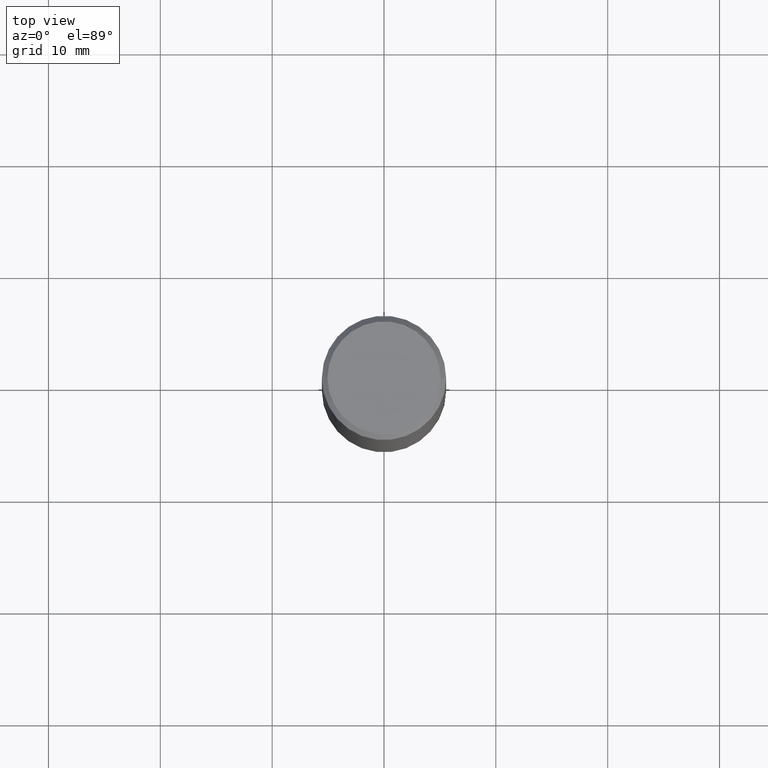
[diagram: clean part render]
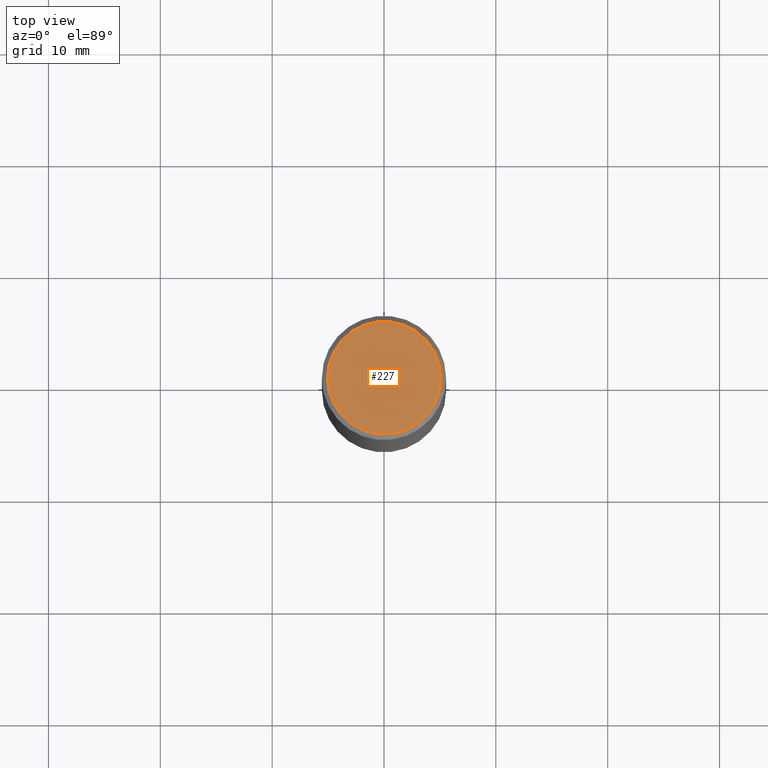
[diagram: same view with one face highlighted and labeled with its STEP entity id]
A machine part, top view. The second image highlights one B-rep face of the part: STEP entity #227.
In plain terms, the highlighted planar face has unit normal (0, -0, -1).
Its self-contained STEP definition (entity closure, byte-faithful):
#44 = VERTEX_POINT ( 'NONE', #219 ) ;
#56 = EDGE_CURVE ( 'NONE', #131, #44, #268, .T. ) ;
#63 = FACE_OUTER_BOUND ( 'NONE', #331, .T. ) ;
#76 = DIRECTION ( 'NONE',  ( 1.000000000000000000, -6.982962677686266711E-15, 4.876176775795935232E-29 ) ) ;
#81 = ORIENTED_EDGE ( 'NONE', *, *, #116, .T. ) ;
#85 = CARTESIAN_POINT ( 'NONE',  ( 0.000000000000000000, 0.000000000000000000, 0.000000000000000000 ) ) ;
#108 = DIRECTION ( 'NONE',  ( -2.445468806185136597E-29, 3.491481338843145583E-15, 1.000000000000000000 ) ) ;
#110 = CARTESIAN_POINT ( 'NONE',  ( 0.000000000000000000, 0.000000000000000000, 0.000000000000000000 ) ) ;
#113 = AXIS2_PLACEMENT_3D ( 'NONE', #110, #334, #192 ) ;
#116 = EDGE_CURVE ( 'NONE', #44, #131, #353, .T. ) ;
#131 = VERTEX_POINT ( 'NONE', #136 ) ;
#136 = CARTESIAN_POINT ( 'NONE',  ( -0.1987499999999997324, 1.422778645578574712E-15, -9.827974342635069682E-30 ) ) ;
#175 = DIRECTION ( 'NONE',  ( 2.438088387897960049E-29, -3.491481338843145188E-15, -1.000000000000000000 ) ) ;
#192 = DIRECTION ( 'NONE',  ( 1.000000000000000000, -6.982962677686266711E-15, 4.876176775795935232E-29 ) ) ;
#219 = CARTESIAN_POINT ( 'NONE',  ( 0.1987499999999997324, -1.467043770423236875E-15, 9.982525199991772484E-30 ) ) ;
#227 = ADVANCED_FACE ( 'NONE', ( #63 ), #253, .F. ) ;
#253 = PLANE ( 'NONE',  #315 ) ;
#268 = CIRCLE ( 'NONE', #113, 0.1987499999999997324 ) ;
#278 = CARTESIAN_POINT ( 'NONE',  ( 1.387863832190143458E-15, 0.1987499999999997324, -6.939319160950741940E-16 ) ) ;
#288 = DIRECTION ( 'NONE',  ( -1.000000000000000000, 6.982962677686265922E-15, -4.876176775795935793E-29 ) ) ;
#315 = AXIS2_PLACEMENT_3D ( 'NONE', #278, #175, #288 ) ;
#321 = AXIS2_PLACEMENT_3D ( 'NONE', #85, #108, #76 ) ;
#323 = ORIENTED_EDGE ( 'NONE', *, *, #56, .T. ) ;
#331 = EDGE_LOOP ( 'NONE', ( #323, #81 ) ) ;
#334 = DIRECTION ( 'NONE',  ( -2.445468806185136597E-29, 3.491481338843145583E-15, 1.000000000000000000 ) ) ;
#353 = CIRCLE ( 'NONE', #321, 0.1987499999999997324 ) ;